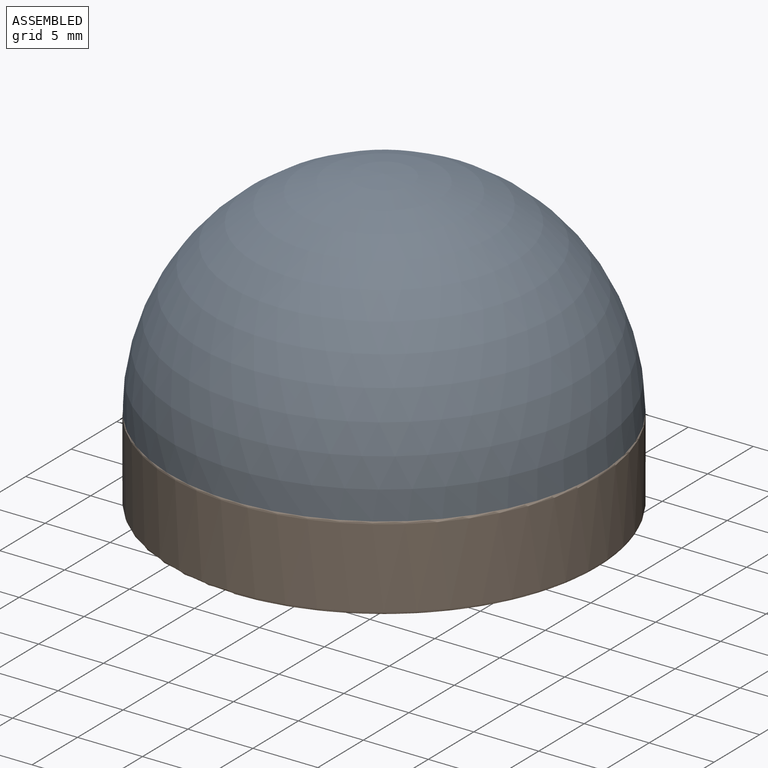
[diagram: assembled view]
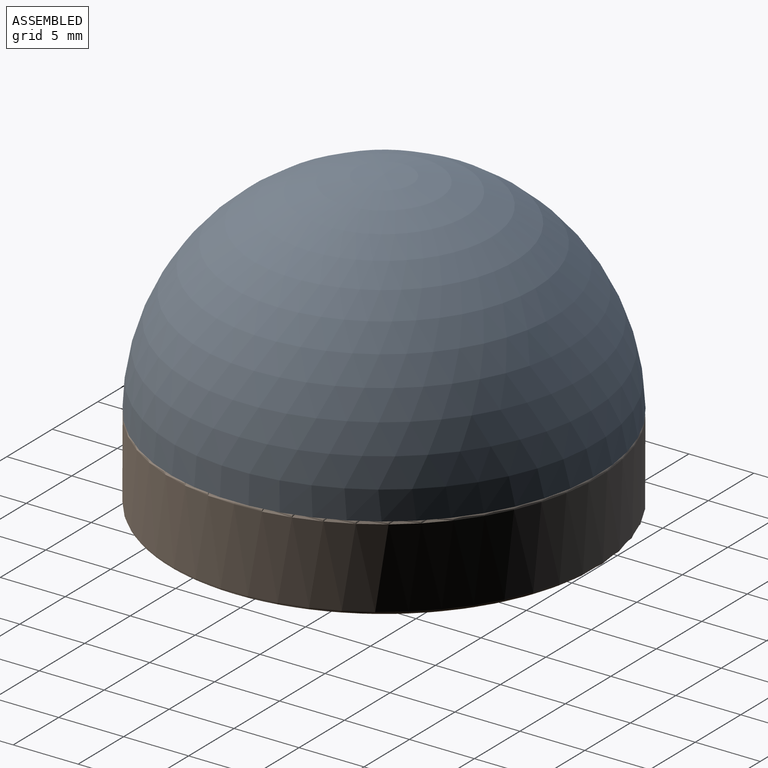
[diagram: assembled view, second angle]
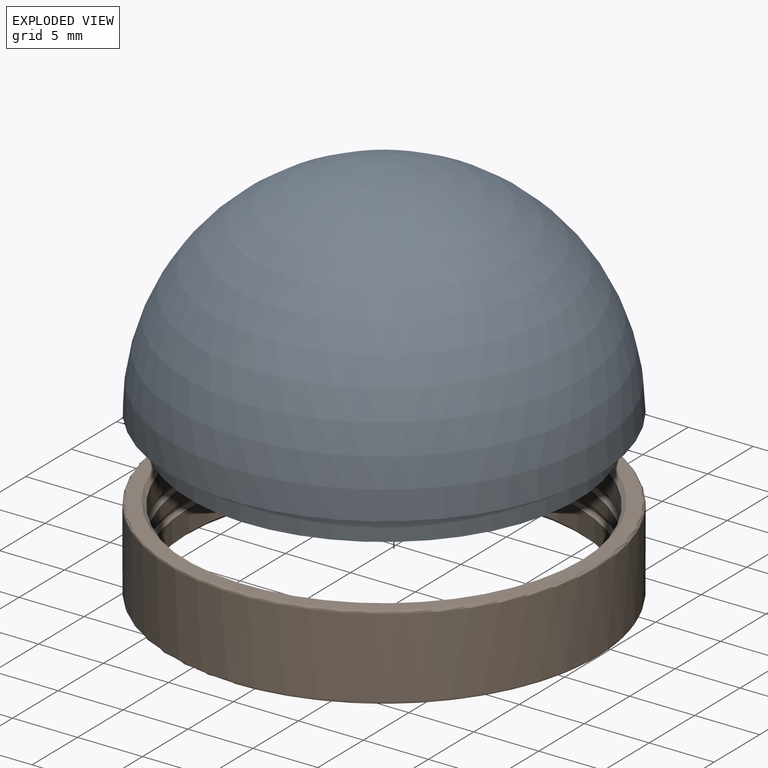
[diagram: exploded view]
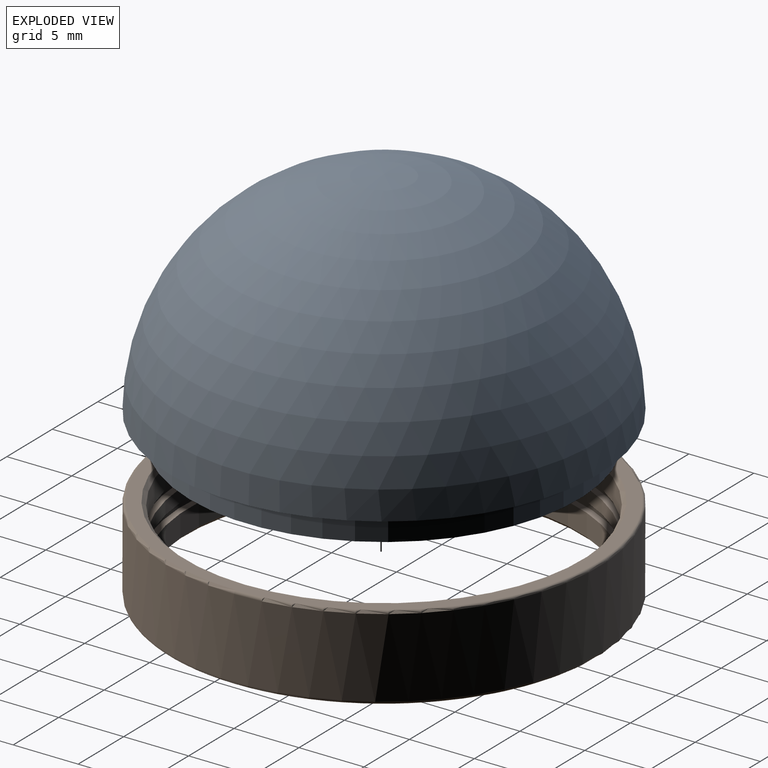
[diagram: exploded view, second angle]
ASSEMBLY  parts=2 mates=2
PART A: 6 faces, bbox 33x33x18.6 mm
  f0: sphere r=14.5mm, area 1321mm2, adj f5
  f1: sphere r=16.5mm, area 1710.6mm2, adj f2
  f2: plane 33x33mm, normal (0,0,-1), area 148.4mm2, adj f1,f3
  f3: cylinder r=15mm len=30mm, axis (0,0,-1), area 200.3mm2, adj f2,f4
  f4: plane 30x30mm, normal (0,0,-1), area 46.3mm2, adj f3,f5
  f5: cylinder r=14.5mm len=29mm, axis (0,0,-1), area 193.7mm2, adj f0,f4
PART B: 16 faces, bbox 35.7x35.7x6.5 mm
  f0: cylinder r=16.5mm len=33mm, axis (0,0,-1), area 632.4mm2, adj f12,f13
  f1: plane 32.6x32.6mm, normal (0,0,-1), area 99.3mm2, adj f12,f14
  f2: cylinder r=15mm len=30mm, axis (0,0,-1), area 160.2mm2, adj f3,f14
  f3: plane 31x31mm, normal (0,0,1), area 47.9mm2, adj f2,f4
  f4: cylinder r=15.5mm len=31mm, axis (0,0,-1), area 73mm2, adj f3,f5
  f5: plane 31x31mm, normal (0,0,-1), area 47.9mm2, adj f4,f6
  f6: cylinder r=15mm len=30mm, axis (0,0,-1), area 94.2mm2, adj f5,f7
  f7: plane 31x31mm, normal (0,0,1), area 47.9mm2, adj f6,f8
  f8: cylinder r=15.5mm len=31mm, axis (0,0,-1), area 73mm2, adj f7,f9
  f9: plane 31x31mm, normal (0,0,-1), area 47.9mm2, adj f8,f10
  f10: cylinder r=15mm len=30mm, axis (0,0,-1), area 160.2mm2, adj f9,f15
  f11: plane 32.6x32.6mm, normal (0,0,1), area 99.3mm2, adj f13,f15
  f12: torus R=16.3mm, axis (0,0,-1), area 32.4mm2, adj f0,f1
  f13: torus R=16.3mm, axis (0,0,1), area 32.4mm2, adj f0,f11
  f14: cone r=15mm half-angle=45deg, axis (0,0,-1), area 40.4mm2, adj f1,f2
  f15: cone r=15.3mm half-angle=45deg, axis (0,0,1), area 40.4mm2, adj f10,f11
PLACE A t=(4.54,-17.78,16.92)mm
PLACE B t=(4.54,-17.78,14.53)mm
MATE cylindrical A.f3 <-> B.f0  axis (0,0,-1) through (4.54,-17.78,19.97)mm
MATE planar A.f3 <-> B.f0  axis (0,0,-1) through (4.54,-17.78,21.03)mm
